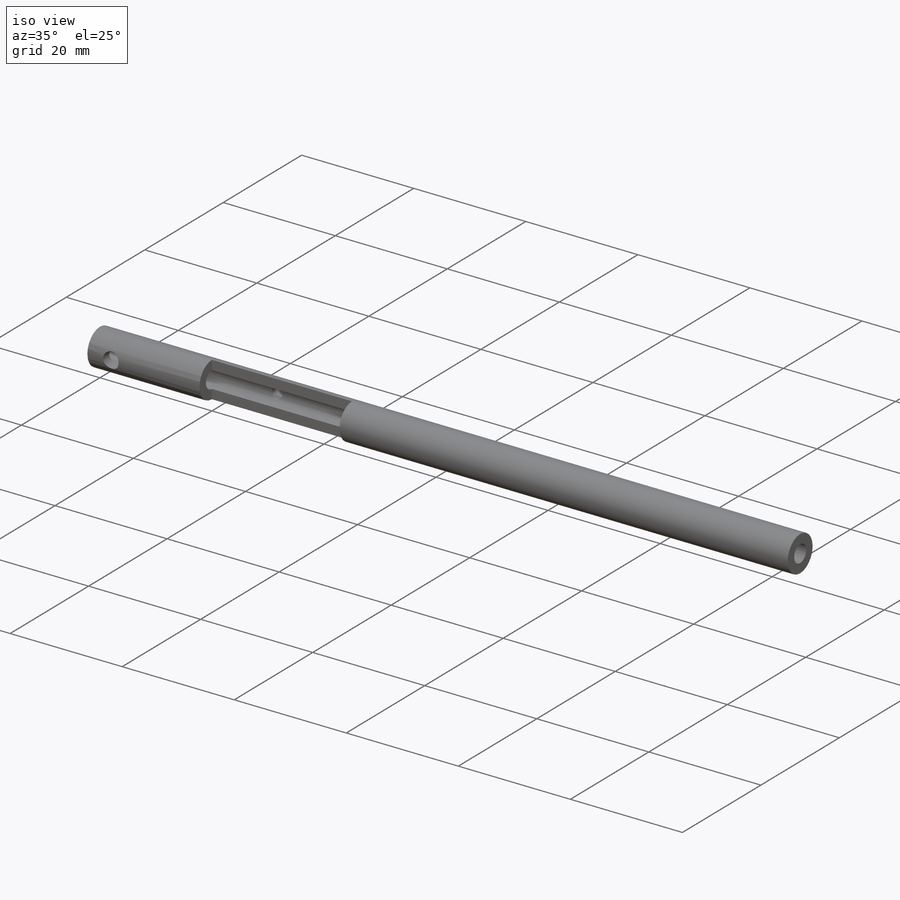
[diagram: iso view]
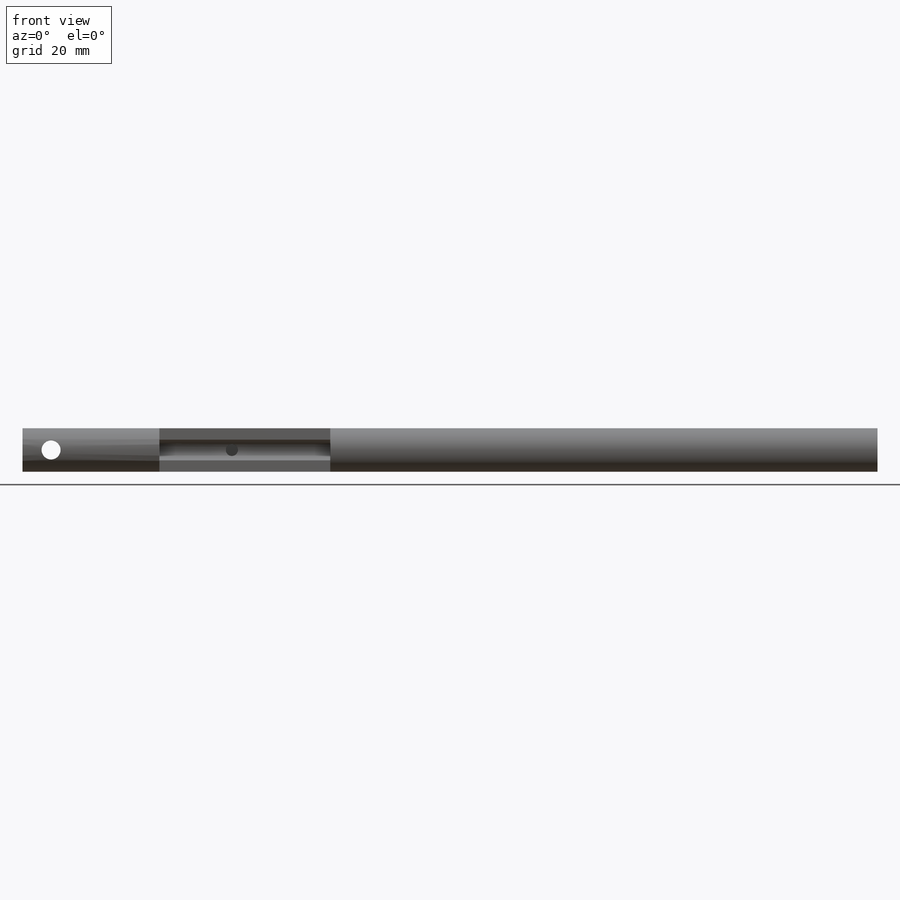
[diagram: front view]
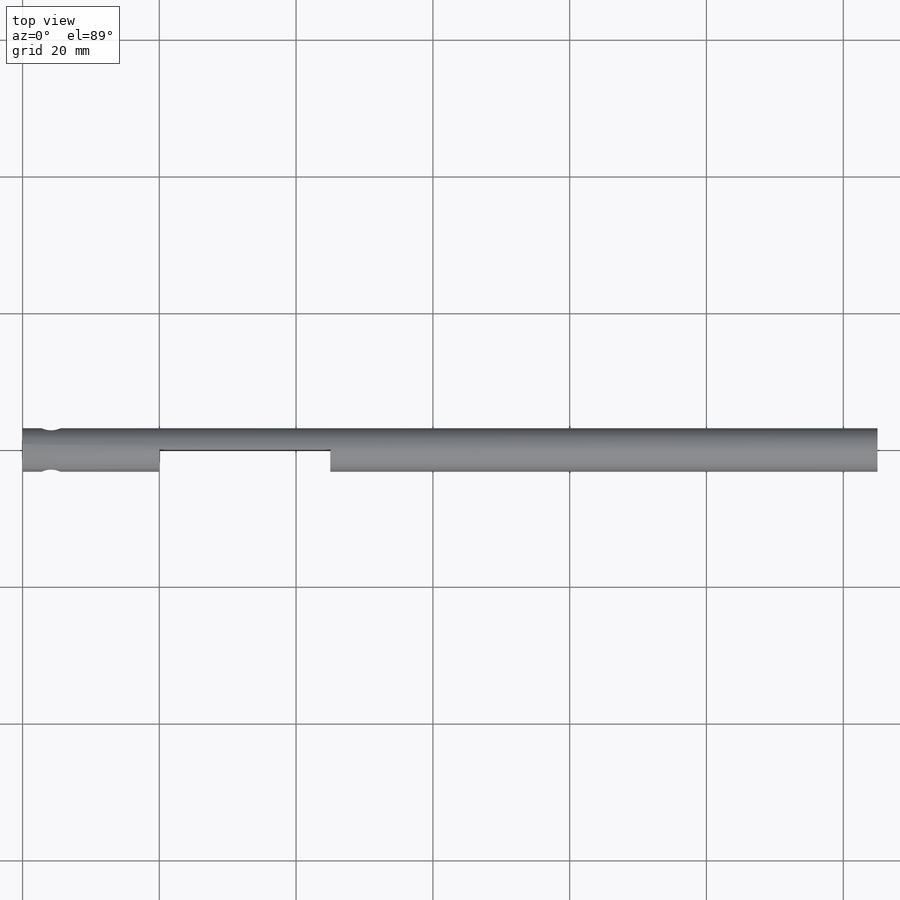
[diagram: top view]
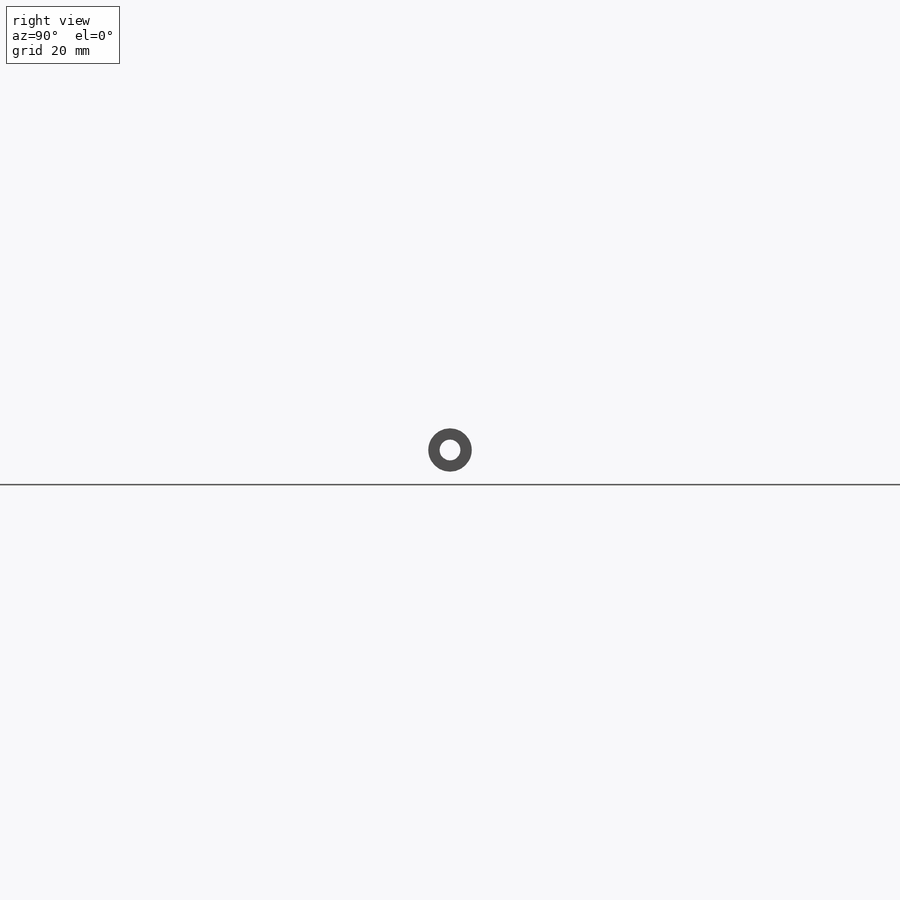
[diagram: right view]
SOLIDWORKS PART (.sldprt)
format: sldprt  version: not decoded by parser v0  size: 173,056 bytes
history: native  units: mm
features: sketch x4, cut_extrude x3, material x1, extrude x1 (+13 scaffold rows collapsed)
feature tree (22):
  scaffold x13  (default folders/planes/origin — collapsed)
  material  "Material <not specified>"
  sketch  "Sketch1"  dims[D1=6.35mm D2=3.048mm]
  extrude  "Boss-Extrude1"  Depth=125mm
  sketch  "Sketch2"  dims[D1=~2.77876mm D2=~7.582599mm]
  cut_extrude  "5-40 hole for set screw attaching shaft"  Depth=10mm
  sketch  "Sketch3"  dims[c1.D1=5.0mm c1.D2=~16.576767mm c2.D1=25.0mm c2.D2=20.0mm]
  cut_extrude  "Cut-Extrude2"  [1 undecoded]
  sketch  "Sketch4"  dims[D1=1.778mm]
  cut_extrude  "Cut-Extrude3"  Depth=3mm
decode coverage: 7 of 8 modeling features carry decoded parameters
note: ~ marks probable driven/reference dimensions
note: 1 parameter value undecoded
note: suppression state not decoded; provenance and decode notes live in map.json
